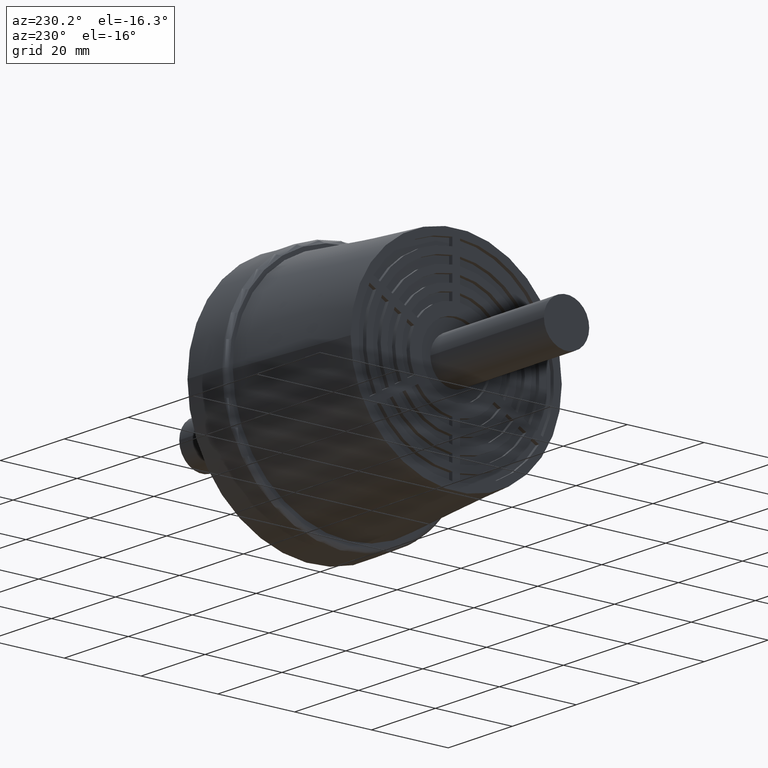
[diagram: clean part render]
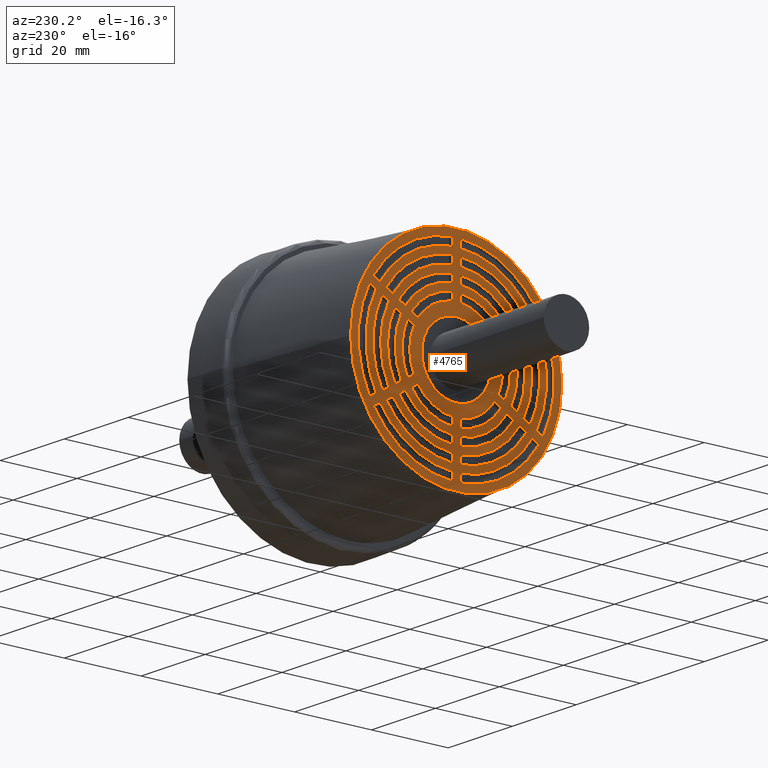
[diagram: same view with one face highlighted and labeled with its STEP entity id]
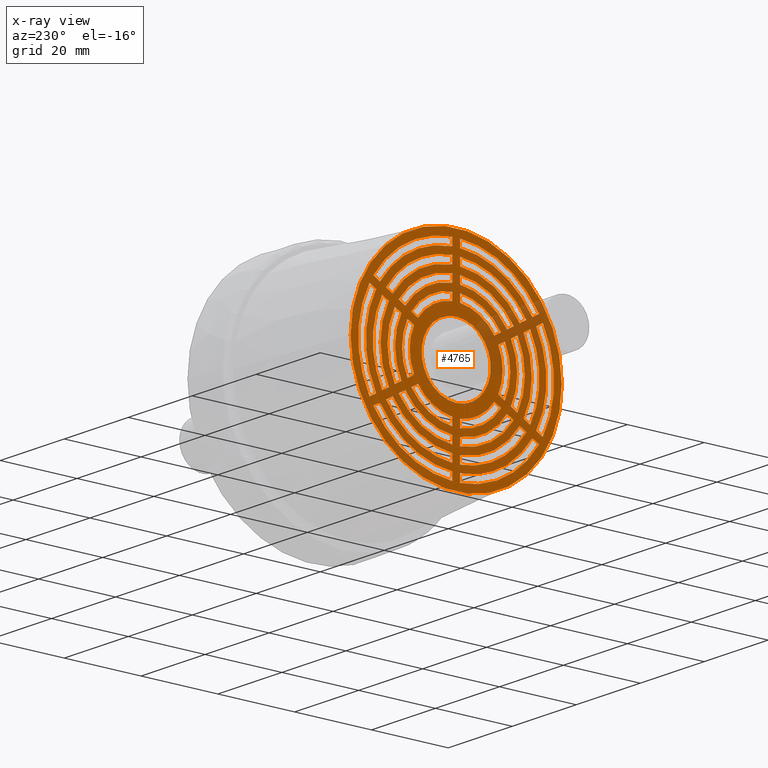
[diagram: x-ray of the same camera — body ghosted, the highlighted face saturated]
A machine part, auxiliary view. The second image highlights one B-rep face of the part: STEP entity #4765.
The next image is the same camera in x-ray: the body ghosted, the highlighted face saturated — about 11% of this face is hidden behind the body in this view.
In plain terms, the highlighted planar face has unit normal (-1, -0, 0).
Its self-contained STEP definition (entity closure, byte-faithful):
#368=LINE('',#7529,#800);
#374=LINE('',#7541,#806);
#378=LINE('',#7550,#810);
#382=LINE('',#7559,#814);
#384=LINE('',#7565,#816);
#390=LINE('',#7577,#822);
#392=LINE('',#7583,#824);
#396=LINE('',#7592,#828);
#400=LINE('',#7601,#832);
#406=LINE('',#7613,#838);
#410=LINE('',#7622,#842);
#414=LINE('',#7631,#846);
#416=LINE('',#7637,#848);
#422=LINE('',#7649,#854);
#424=LINE('',#7655,#856);
#428=LINE('',#7664,#860);
#432=LINE('',#7673,#864);
#438=LINE('',#7685,#870);
#442=LINE('',#7694,#874);
#446=LINE('',#7703,#878);
#448=LINE('',#7709,#880);
#454=LINE('',#7721,#886);
#456=LINE('',#7727,#888);
#460=LINE('',#7736,#892);
#464=LINE('',#7745,#896);
#470=LINE('',#7757,#902);
#474=LINE('',#7766,#906);
#478=LINE('',#7775,#910);
#480=LINE('',#7781,#912);
#486=LINE('',#7793,#918);
#488=LINE('',#7799,#920);
#492=LINE('',#7808,#924);
#496=LINE('',#7817,#928);
#502=LINE('',#7829,#934);
#506=LINE('',#7838,#938);
#510=LINE('',#7847,#942);
#512=LINE('',#7853,#944);
#518=LINE('',#7865,#950);
#520=LINE('',#7871,#952);
#524=LINE('',#7880,#956);
#542=LINE('',#8069,#974);
#543=LINE('',#8070,#975);
#544=LINE('',#8071,#976);
#545=LINE('',#8072,#977);
#546=LINE('',#8076,#978);
#547=LINE('',#8078,#979);
#548=LINE('',#8082,#980);
#549=LINE('',#8087,#981);
#800=VECTOR('',#6082,2.00167084873403);
#806=VECTOR('',#6090,2.00234336091663);
#810=VECTOR('',#6096,2.00352290987396);
#814=VECTOR('',#6102,2.00588741832028);
#816=VECTOR('',#6106,2.00234336091664);
#822=VECTOR('',#6114,2.00167084873402);
#824=VECTOR('',#6118,2.00352290987396);
#828=VECTOR('',#6124,2.00588741832028);
#832=VECTOR('',#6130,2.00167084873402);
#838=VECTOR('',#6138,2.00234336091663);
#842=VECTOR('',#6144,2.00352290987396);
#846=VECTOR('',#6150,2.00588741832028);
#848=VECTOR('',#6154,2.00234336091663);
#854=VECTOR('',#6162,2.00167084873403);
#856=VECTOR('',#6166,2.00352290987396);
#860=VECTOR('',#6172,2.00588741832028);
#864=VECTOR('',#6178,2.00167084873403);
#870=VECTOR('',#6186,2.00234336091663);
#874=VECTOR('',#6192,2.00352290987396);
#878=VECTOR('',#6198,2.00588741832028);
#880=VECTOR('',#6202,2.00234336091663);
#886=VECTOR('',#6210,2.00167084873403);
#888=VECTOR('',#6214,2.00352290987396);
#892=VECTOR('',#6220,2.00588741832028);
#896=VECTOR('',#6226,2.00167084873403);
#902=VECTOR('',#6234,2.00234336091663);
#906=VECTOR('',#6240,2.00352290987396);
#910=VECTOR('',#6246,2.00588741832028);
#912=VECTOR('',#6250,2.00234336091663);
#918=VECTOR('',#6258,2.00167084873402);
#920=VECTOR('',#6262,2.00352290987396);
#924=VECTOR('',#6268,2.00588741832028);
#928=VECTOR('',#6274,2.00167084873403);
#934=VECTOR('',#6282,2.00234336091663);
#938=VECTOR('',#6288,2.00352290987396);
#942=VECTOR('',#6294,2.00588741832028);
#944=VECTOR('',#6298,2.00234336091664);
#950=VECTOR('',#6306,2.00167084873403);
#952=VECTOR('',#6310,2.00352290987396);
#956=VECTOR('',#6316,2.00588741832028);
#974=VECTOR('',#6632,2.00167084873403);
#975=VECTOR('',#6633,2.00588741832028);
#976=VECTOR('',#6634,2.00352290987396);
#977=VECTOR('',#6635,2.00234336091663);
#978=VECTOR('',#6638,2.00588741832028);
#979=VECTOR('',#6641,2.00167084873403);
#980=VECTOR('',#6644,2.00352290987396);
#981=VECTOR('',#6649,2.00234336091663);
#1142=PLANE('',#5252);
#1196=FACE_BOUND('',#1792,.T.);
#1197=FACE_BOUND('',#1793,.T.);
#1198=FACE_BOUND('',#1794,.T.);
#1199=FACE_BOUND('',#1795,.T.);
#1200=FACE_BOUND('',#1796,.T.);
#1201=FACE_BOUND('',#1797,.T.);
#1202=FACE_BOUND('',#1798,.T.);
#1203=FACE_BOUND('',#1799,.T.);
#1204=FACE_BOUND('',#1800,.T.);
#1205=FACE_BOUND('',#1801,.T.);
#1206=FACE_BOUND('',#1802,.T.);
#1207=FACE_BOUND('',#1803,.T.);
#1208=FACE_BOUND('',#1804,.T.);
#1209=FACE_BOUND('',#1805,.T.);
#1210=FACE_BOUND('',#1806,.T.);
#1211=FACE_BOUND('',#1807,.T.);
#1212=FACE_BOUND('',#1808,.T.);
#1213=FACE_BOUND('',#1809,.T.);
#1214=FACE_BOUND('',#1810,.T.);
#1215=FACE_BOUND('',#1811,.T.);
#1216=FACE_BOUND('',#1812,.T.);
#1217=FACE_BOUND('',#1813,.T.);
#1218=FACE_BOUND('',#1814,.T.);
#1219=FACE_BOUND('',#1815,.T.);
#1220=FACE_BOUND('',#1816,.T.);
#1473=FACE_OUTER_BOUND('',#1791,.T.);
#1791=EDGE_LOOP('',(#4289));
#1792=EDGE_LOOP('',(#4290,#4291,#4292,#4293));
#1793=EDGE_LOOP('',(#4294,#4295,#4296,#4297));
#1794=EDGE_LOOP('',(#4298,#4299,#4300,#4301));
#1795=EDGE_LOOP('',(#4302,#4303,#4304,#4305));
#1796=EDGE_LOOP('',(#4306,#4307,#4308,#4309));
#1797=EDGE_LOOP('',(#4310,#4311,#4312,#4313));
#1798=EDGE_LOOP('',(#4314,#4315,#4316,#4317));
#1799=EDGE_LOOP('',(#4318,#4319,#4320,#4321));
#1800=EDGE_LOOP('',(#4322,#4323,#4324,#4325));
#1801=EDGE_LOOP('',(#4326,#4327,#4328,#4329));
#1802=EDGE_LOOP('',(#4330,#4331,#4332,#4333));
#1803=EDGE_LOOP('',(#4334,#4335,#4336,#4337));
#1804=EDGE_LOOP('',(#4338,#4339,#4340,#4341));
#1805=EDGE_LOOP('',(#4342,#4343,#4344,#4345));
#1806=EDGE_LOOP('',(#4346,#4347,#4348,#4349));
#1807=EDGE_LOOP('',(#4350,#4351,#4352,#4353));
#1808=EDGE_LOOP('',(#4354,#4355,#4356,#4357));
#1809=EDGE_LOOP('',(#4358,#4359,#4360,#4361));
#1810=EDGE_LOOP('',(#4362,#4363,#4364,#4365));
#1811=EDGE_LOOP('',(#4366,#4367,#4368,#4369));
#1812=EDGE_LOOP('',(#4370,#4371,#4372,#4373));
#1813=EDGE_LOOP('',(#4374,#4375,#4376,#4377));
#1814=EDGE_LOOP('',(#4378,#4379,#4380,#4381));
#1815=EDGE_LOOP('',(#4382,#4383,#4384,#4385));
#1816=EDGE_LOOP('',(#4386));
#1980=CIRCLE('',#5107,12.1);
#1982=CIRCLE('',#5110,12.1);
#1984=CIRCLE('',#5113,12.1);
#1986=CIRCLE('',#5116,12.1);
#1988=CIRCLE('',#5119,12.1);
#1994=CIRCLE('',#5131,14.1);
#1995=CIRCLE('',#5133,14.1);
#1996=CIRCLE('',#5135,14.1);
#1997=CIRCLE('',#5137,14.1);
#1998=CIRCLE('',#5139,14.1);
#2000=CIRCLE('',#5142,15.9);
#2002=CIRCLE('',#5145,15.9);
#2004=CIRCLE('',#5148,15.9);
#2006=CIRCLE('',#5151,15.9);
#2008=CIRCLE('',#5154,15.9);
#2014=CIRCLE('',#5166,17.9);
#2015=CIRCLE('',#5168,17.9);
#2016=CIRCLE('',#5170,17.9);
#2017=CIRCLE('',#5172,17.9);
#2018=CIRCLE('',#5174,17.9);
#2019=CIRCLE('',#5176,25.5);
#2021=CIRCLE('',#5179,25.5);
#2023=CIRCLE('',#5182,25.5);
#2025=CIRCLE('',#5185,25.5);
#2027=CIRCLE('',#5188,25.5);
#2030=CIRCLE('',#5192,25.5);
#2032=CIRCLE('',#5195,19.7);
#2034=CIRCLE('',#5198,19.7);
#2036=CIRCLE('',#5201,19.7);
#2038=CIRCLE('',#5204,19.7);
#2040=CIRCLE('',#5207,19.7);
#2052=CIRCLE('',#5231,23.5);
#2053=CIRCLE('',#5233,23.5);
#2054=CIRCLE('',#5235,23.5);
#2055=CIRCLE('',#5237,23.5);
#2056=CIRCLE('',#5239,23.5);
#2057=CIRCLE('',#5241,23.5);
#2058=CIRCLE('',#5243,21.7);
#2059=CIRCLE('',#5245,21.7);
#2060=CIRCLE('',#5247,21.7);
#2061=CIRCLE('',#5249,21.7);
#2062=CIRCLE('',#5251,21.7);
#2063=CIRCLE('',#5253,27.5);
#2064=CIRCLE('',#5254,14.1);
#2065=CIRCLE('',#5255,12.1);
#2066=CIRCLE('',#5256,17.9);
#2067=CIRCLE('',#5257,15.9);
#2068=CIRCLE('',#5258,21.7);
#2069=CIRCLE('',#5259,19.7);
#2070=CIRCLE('',#5260,9.);
#2336=VERTEX_POINT('',#7525);
#2338=VERTEX_POINT('',#7528);
#2341=VERTEX_POINT('',#7535);
#2343=VERTEX_POINT('',#7539);
#2345=VERTEX_POINT('',#7544);
#2347=VERTEX_POINT('',#7548);
#2349=VERTEX_POINT('',#7553);
#2351=VERTEX_POINT('',#7557);
#2352=VERTEX_POINT('',#7561);
#2354=VERTEX_POINT('',#7564);
#2357=VERTEX_POINT('',#7571);
#2359=VERTEX_POINT('',#7575);
#2360=VERTEX_POINT('',#7579);
#2362=VERTEX_POINT('',#7582);
#2364=VERTEX_POINT('',#7588);
#2366=VERTEX_POINT('',#7591);
#2368=VERTEX_POINT('',#7597);
#2370=VERTEX_POINT('',#7600);
#2373=VERTEX_POINT('',#7607);
#2375=VERTEX_POINT('',#7611);
#2377=VERTEX_POINT('',#7616);
#2379=VERTEX_POINT('',#7620);
#2381=VERTEX_POINT('',#7625);
#2383=VERTEX_POINT('',#7629);
#2384=VERTEX_POINT('',#7633);
#2386=VERTEX_POINT('',#7636);
#2389=VERTEX_POINT('',#7643);
#2391=VERTEX_POINT('',#7647);
#2392=VERTEX_POINT('',#7651);
#2394=VERTEX_POINT('',#7654);
#2396=VERTEX_POINT('',#7660);
#2398=VERTEX_POINT('',#7663);
#2400=VERTEX_POINT('',#7669);
#2402=VERTEX_POINT('',#7672);
#2405=VERTEX_POINT('',#7679);
#2407=VERTEX_POINT('',#7683);
#2409=VERTEX_POINT('',#7688);
#2411=VERTEX_POINT('',#7692);
#2413=VERTEX_POINT('',#7697);
#2415=VERTEX_POINT('',#7701);
#2416=VERTEX_POINT('',#7705);
#2418=VERTEX_POINT('',#7708);
#2421=VERTEX_POINT('',#7715);
#2423=VERTEX_POINT('',#7719);
#2424=VERTEX_POINT('',#7723);
#2426=VERTEX_POINT('',#7726);
#2428=VERTEX_POINT('',#7732);
#2430=VERTEX_POINT('',#7735);
#2432=VERTEX_POINT('',#7741);
#2434=VERTEX_POINT('',#7744);
#2437=VERTEX_POINT('',#7751);
#2439=VERTEX_POINT('',#7755);
#2441=VERTEX_POINT('',#7760);
#2443=VERTEX_POINT('',#7764);
#2445=VERTEX_POINT('',#7769);
#2447=VERTEX_POINT('',#7773);
#2448=VERTEX_POINT('',#7777);
#2450=VERTEX_POINT('',#7780);
#2453=VERTEX_POINT('',#7787);
#2455=VERTEX_POINT('',#7791);
#2456=VERTEX_POINT('',#7795);
#2458=VERTEX_POINT('',#7798);
#2460=VERTEX_POINT('',#7804);
#2462=VERTEX_POINT('',#7807);
#2464=VERTEX_POINT('',#7813);
#2466=VERTEX_POINT('',#7816);
#2469=VERTEX_POINT('',#7823);
#2471=VERTEX_POINT('',#7827);
#2473=VERTEX_POINT('',#7832);
#2475=VERTEX_POINT('',#7836);
#2477=VERTEX_POINT('',#7841);
#2479=VERTEX_POINT('',#7845);
#2480=VERTEX_POINT('',#7849);
#2482=VERTEX_POINT('',#7852);
#2485=VERTEX_POINT('',#7859);
#2487=VERTEX_POINT('',#7863);
#2488=VERTEX_POINT('',#7867);
#2490=VERTEX_POINT('',#7870);
#2492=VERTEX_POINT('',#7876);
#2494=VERTEX_POINT('',#7879);
#2497=VERTEX_POINT('',#7887);
#2499=VERTEX_POINT('',#7915);
#2501=VERTEX_POINT('',#7929);
#2503=VERTEX_POINT('',#7957);
#2504=VERTEX_POINT('',#7969);
#2507=VERTEX_POINT('',#7989);
#2509=VERTEX_POINT('',#7995);
#2513=VERTEX_POINT('',#8039);
#2514=VERTEX_POINT('',#8051);
#2515=VERTEX_POINT('',#8055);
#2516=VERTEX_POINT('',#8067);
#2517=VERTEX_POINT('',#8073);
#2518=VERTEX_POINT('',#8075);
#2519=VERTEX_POINT('',#8079);
#2520=VERTEX_POINT('',#8081);
#2521=VERTEX_POINT('',#8084);
#2522=VERTEX_POINT('',#8086);
#2523=VERTEX_POINT('',#8089);
#2894=EDGE_CURVE('',#2338,#2336,#368,.T.);
#2900=EDGE_CURVE('',#2341,#2343,#374,.T.);
#2904=EDGE_CURVE('',#2345,#2347,#378,.T.);
#2908=EDGE_CURVE('',#2349,#2351,#382,.T.);
#2910=EDGE_CURVE('',#2354,#2352,#384,.T.);
#2916=EDGE_CURVE('',#2357,#2359,#390,.T.);
#2918=EDGE_CURVE('',#2362,#2360,#392,.T.);
#2922=EDGE_CURVE('',#2366,#2364,#396,.T.);
#2926=EDGE_CURVE('',#2370,#2368,#400,.T.);
#2932=EDGE_CURVE('',#2373,#2375,#406,.T.);
#2936=EDGE_CURVE('',#2377,#2379,#410,.T.);
#2940=EDGE_CURVE('',#2381,#2383,#414,.T.);
#2942=EDGE_CURVE('',#2386,#2384,#416,.T.);
#2948=EDGE_CURVE('',#2389,#2391,#422,.T.);
#2950=EDGE_CURVE('',#2394,#2392,#424,.T.);
#2954=EDGE_CURVE('',#2398,#2396,#428,.T.);
#2958=EDGE_CURVE('',#2402,#2400,#432,.T.);
#2964=EDGE_CURVE('',#2405,#2407,#438,.T.);
#2968=EDGE_CURVE('',#2409,#2411,#442,.T.);
#2972=EDGE_CURVE('',#2413,#2415,#446,.T.);
#2974=EDGE_CURVE('',#2418,#2416,#448,.T.);
#2980=EDGE_CURVE('',#2421,#2423,#454,.T.);
#2982=EDGE_CURVE('',#2426,#2424,#456,.T.);
#2986=EDGE_CURVE('',#2430,#2428,#460,.T.);
#2990=EDGE_CURVE('',#2434,#2432,#464,.T.);
#2996=EDGE_CURVE('',#2437,#2439,#470,.T.);
#3000=EDGE_CURVE('',#2441,#2443,#474,.T.);
#3004=EDGE_CURVE('',#2445,#2447,#478,.T.);
#3006=EDGE_CURVE('',#2450,#2448,#480,.T.);
#3012=EDGE_CURVE('',#2453,#2455,#486,.T.);
#3014=EDGE_CURVE('',#2458,#2456,#488,.T.);
#3018=EDGE_CURVE('',#2462,#2460,#492,.T.);
#3022=EDGE_CURVE('',#2466,#2464,#496,.T.);
#3028=EDGE_CURVE('',#2469,#2471,#502,.T.);
#3032=EDGE_CURVE('',#2473,#2475,#506,.T.);
#3036=EDGE_CURVE('',#2477,#2479,#510,.T.);
#3038=EDGE_CURVE('',#2482,#2480,#512,.T.);
#3044=EDGE_CURVE('',#2485,#2487,#518,.T.);
#3046=EDGE_CURVE('',#2490,#2488,#520,.T.);
#3050=EDGE_CURVE('',#2494,#2492,#524,.T.);
#3055=EDGE_CURVE('',#2492,#2497,#1980,.T.);
#3057=EDGE_CURVE('',#2460,#2477,#1982,.T.);
#3059=EDGE_CURVE('',#2428,#2445,#1984,.T.);
#3061=EDGE_CURVE('',#2396,#2413,#1986,.T.);
#3063=EDGE_CURVE('',#2364,#2381,#1988,.T.);
#3070=EDGE_CURVE('',#2499,#2494,#1994,.T.);
#3072=EDGE_CURVE('',#2479,#2462,#1995,.T.);
#3073=EDGE_CURVE('',#2447,#2430,#1996,.T.);
#3074=EDGE_CURVE('',#2415,#2398,#1997,.T.);
#3075=EDGE_CURVE('',#2383,#2366,#1998,.T.);
#3078=EDGE_CURVE('',#2488,#2501,#2000,.T.);
#3080=EDGE_CURVE('',#2456,#2473,#2002,.T.);
#3082=EDGE_CURVE('',#2424,#2441,#2004,.T.);
#3084=EDGE_CURVE('',#2392,#2409,#2006,.T.);
#3086=EDGE_CURVE('',#2360,#2377,#2008,.T.);
#3093=EDGE_CURVE('',#2503,#2490,#2014,.T.);
#3095=EDGE_CURVE('',#2475,#2458,#2015,.T.);
#3096=EDGE_CURVE('',#2443,#2426,#2016,.T.);
#3097=EDGE_CURVE('',#2411,#2394,#2017,.T.);
#3098=EDGE_CURVE('',#2379,#2362,#2018,.T.);
#3099=EDGE_CURVE('',#2504,#2485,#2019,.T.);
#3102=EDGE_CURVE('',#2464,#2453,#2021,.T.);
#3104=EDGE_CURVE('',#2432,#2421,#2023,.T.);
#3106=EDGE_CURVE('',#2400,#2389,#2025,.T.);
#3108=EDGE_CURVE('',#2368,#2357,#2027,.T.);
#3112=EDGE_CURVE('',#2336,#2507,#2030,.T.);
#3115=EDGE_CURVE('',#2480,#2509,#2032,.T.);
#3117=EDGE_CURVE('',#2448,#2469,#2034,.T.);
#3119=EDGE_CURVE('',#2416,#2437,#2036,.T.);
#3121=EDGE_CURVE('',#2384,#2405,#2038,.T.);
#3123=EDGE_CURVE('',#2352,#2373,#2040,.T.);
#3139=EDGE_CURVE('',#2487,#2513,#2052,.T.);
#3140=EDGE_CURVE('',#2455,#2466,#2053,.T.);
#3141=EDGE_CURVE('',#2423,#2434,#2054,.T.);
#3142=EDGE_CURVE('',#2391,#2402,#2055,.T.);
#3143=EDGE_CURVE('',#2359,#2370,#2056,.T.);
#3144=EDGE_CURVE('',#2514,#2338,#2057,.T.);
#3146=EDGE_CURVE('',#2515,#2482,#2058,.T.);
#3148=EDGE_CURVE('',#2471,#2450,#2059,.T.);
#3149=EDGE_CURVE('',#2439,#2418,#2060,.T.);
#3150=EDGE_CURVE('',#2407,#2386,#2061,.T.);
#3151=EDGE_CURVE('',#2375,#2354,#2062,.T.);
#3152=EDGE_CURVE('',#2516,#2516,#2063,.T.);
#3153=EDGE_CURVE('',#2507,#2514,#542,.T.);
#3154=EDGE_CURVE('',#2497,#2499,#543,.T.);
#3155=EDGE_CURVE('',#2501,#2503,#544,.T.);
#3156=EDGE_CURVE('',#2509,#2515,#545,.T.);
#3157=EDGE_CURVE('',#2351,#2517,#2064,.T.);
#3158=EDGE_CURVE('',#2517,#2518,#546,.T.);
#3159=EDGE_CURVE('',#2518,#2349,#2065,.T.);
#3160=EDGE_CURVE('',#2513,#2504,#547,.T.);
#3161=EDGE_CURVE('',#2347,#2519,#2066,.T.);
#3162=EDGE_CURVE('',#2519,#2520,#548,.T.);
#3163=EDGE_CURVE('',#2520,#2345,#2067,.T.);
#3164=EDGE_CURVE('',#2343,#2521,#2068,.T.);
#3165=EDGE_CURVE('',#2521,#2522,#549,.T.);
#3166=EDGE_CURVE('',#2522,#2341,#2069,.T.);
#3167=EDGE_CURVE('',#2523,#2523,#2070,.T.);
#4289=ORIENTED_EDGE('',*,*,#3152,.F.);
#4290=ORIENTED_EDGE('',*,*,#3063,.T.);
#4291=ORIENTED_EDGE('',*,*,#2940,.T.);
#4292=ORIENTED_EDGE('',*,*,#3075,.T.);
#4293=ORIENTED_EDGE('',*,*,#2922,.T.);
#4294=ORIENTED_EDGE('',*,*,#3086,.T.);
#4295=ORIENTED_EDGE('',*,*,#2936,.T.);
#4296=ORIENTED_EDGE('',*,*,#3098,.T.);
#4297=ORIENTED_EDGE('',*,*,#2918,.T.);
#4298=ORIENTED_EDGE('',*,*,#3112,.T.);
#4299=ORIENTED_EDGE('',*,*,#3153,.T.);
#4300=ORIENTED_EDGE('',*,*,#3144,.T.);
#4301=ORIENTED_EDGE('',*,*,#2894,.T.);
#4302=ORIENTED_EDGE('',*,*,#3123,.T.);
#4303=ORIENTED_EDGE('',*,*,#2932,.T.);
#4304=ORIENTED_EDGE('',*,*,#3151,.T.);
#4305=ORIENTED_EDGE('',*,*,#2910,.T.);
#4306=ORIENTED_EDGE('',*,*,#3061,.T.);
#4307=ORIENTED_EDGE('',*,*,#2972,.T.);
#4308=ORIENTED_EDGE('',*,*,#3074,.T.);
#4309=ORIENTED_EDGE('',*,*,#2954,.T.);
#4310=ORIENTED_EDGE('',*,*,#3084,.T.);
#4311=ORIENTED_EDGE('',*,*,#2968,.T.);
#4312=ORIENTED_EDGE('',*,*,#3097,.T.);
#4313=ORIENTED_EDGE('',*,*,#2950,.T.);
#4314=ORIENTED_EDGE('',*,*,#2916,.T.);
#4315=ORIENTED_EDGE('',*,*,#3143,.T.);
#4316=ORIENTED_EDGE('',*,*,#2926,.T.);
#4317=ORIENTED_EDGE('',*,*,#3108,.T.);
#4318=ORIENTED_EDGE('',*,*,#3121,.T.);
#4319=ORIENTED_EDGE('',*,*,#2964,.T.);
#4320=ORIENTED_EDGE('',*,*,#3150,.T.);
#4321=ORIENTED_EDGE('',*,*,#2942,.T.);
#4322=ORIENTED_EDGE('',*,*,#3059,.T.);
#4323=ORIENTED_EDGE('',*,*,#3004,.T.);
#4324=ORIENTED_EDGE('',*,*,#3073,.T.);
#4325=ORIENTED_EDGE('',*,*,#2986,.T.);
#4326=ORIENTED_EDGE('',*,*,#3082,.T.);
#4327=ORIENTED_EDGE('',*,*,#3000,.T.);
#4328=ORIENTED_EDGE('',*,*,#3096,.T.);
#4329=ORIENTED_EDGE('',*,*,#2982,.T.);
#4330=ORIENTED_EDGE('',*,*,#2948,.T.);
#4331=ORIENTED_EDGE('',*,*,#3142,.T.);
#4332=ORIENTED_EDGE('',*,*,#2958,.T.);
#4333=ORIENTED_EDGE('',*,*,#3106,.T.);
#4334=ORIENTED_EDGE('',*,*,#3119,.T.);
#4335=ORIENTED_EDGE('',*,*,#2996,.T.);
#4336=ORIENTED_EDGE('',*,*,#3149,.T.);
#4337=ORIENTED_EDGE('',*,*,#2974,.T.);
#4338=ORIENTED_EDGE('',*,*,#3057,.T.);
#4339=ORIENTED_EDGE('',*,*,#3036,.T.);
#4340=ORIENTED_EDGE('',*,*,#3072,.T.);
#4341=ORIENTED_EDGE('',*,*,#3018,.T.);
#4342=ORIENTED_EDGE('',*,*,#3080,.T.);
#4343=ORIENTED_EDGE('',*,*,#3032,.T.);
#4344=ORIENTED_EDGE('',*,*,#3095,.T.);
#4345=ORIENTED_EDGE('',*,*,#3014,.T.);
#4346=ORIENTED_EDGE('',*,*,#2980,.T.);
#4347=ORIENTED_EDGE('',*,*,#3141,.T.);
#4348=ORIENTED_EDGE('',*,*,#2990,.T.);
#4349=ORIENTED_EDGE('',*,*,#3104,.T.);
#4350=ORIENTED_EDGE('',*,*,#3117,.T.);
#4351=ORIENTED_EDGE('',*,*,#3028,.T.);
#4352=ORIENTED_EDGE('',*,*,#3148,.T.);
#4353=ORIENTED_EDGE('',*,*,#3006,.T.);
#4354=ORIENTED_EDGE('',*,*,#3055,.T.);
#4355=ORIENTED_EDGE('',*,*,#3154,.T.);
#4356=ORIENTED_EDGE('',*,*,#3070,.T.);
#4357=ORIENTED_EDGE('',*,*,#3050,.T.);
#4358=ORIENTED_EDGE('',*,*,#3078,.T.);
#4359=ORIENTED_EDGE('',*,*,#3155,.T.);
#4360=ORIENTED_EDGE('',*,*,#3093,.T.);
#4361=ORIENTED_EDGE('',*,*,#3046,.T.);
#4362=ORIENTED_EDGE('',*,*,#3012,.T.);
#4363=ORIENTED_EDGE('',*,*,#3140,.T.);
#4364=ORIENTED_EDGE('',*,*,#3022,.T.);
#4365=ORIENTED_EDGE('',*,*,#3102,.T.);
#4366=ORIENTED_EDGE('',*,*,#3115,.T.);
#4367=ORIENTED_EDGE('',*,*,#3156,.T.);
#4368=ORIENTED_EDGE('',*,*,#3146,.T.);
#4369=ORIENTED_EDGE('',*,*,#3038,.T.);
#4370=ORIENTED_EDGE('',*,*,#2908,.T.);
#4371=ORIENTED_EDGE('',*,*,#3157,.T.);
#4372=ORIENTED_EDGE('',*,*,#3158,.T.);
#4373=ORIENTED_EDGE('',*,*,#3159,.T.);
#4374=ORIENTED_EDGE('',*,*,#3044,.T.);
#4375=ORIENTED_EDGE('',*,*,#3139,.T.);
#4376=ORIENTED_EDGE('',*,*,#3160,.T.);
#4377=ORIENTED_EDGE('',*,*,#3099,.T.);
#4378=ORIENTED_EDGE('',*,*,#2904,.T.);
#4379=ORIENTED_EDGE('',*,*,#3161,.T.);
#4380=ORIENTED_EDGE('',*,*,#3162,.T.);
#4381=ORIENTED_EDGE('',*,*,#3163,.T.);
#4382=ORIENTED_EDGE('',*,*,#2900,.T.);
#4383=ORIENTED_EDGE('',*,*,#3164,.T.);
#4384=ORIENTED_EDGE('',*,*,#3165,.T.);
#4385=ORIENTED_EDGE('',*,*,#3166,.T.);
#4386=ORIENTED_EDGE('',*,*,#3167,.T.);
#4765=ADVANCED_FACE('',(#1473,#1196,#1197,#1198,#1199,#1200,#1201,#1202,
#1203,#1204,#1205,#1206,#1207,#1208,#1209,#1210,#1211,#1212,#1213,#1214,
#1215,#1216,#1217,#1218,#1219,#1220),#1142,.T.);
#5107=AXIS2_PLACEMENT_3D('',#7889,#6324,#6325);
#5110=AXIS2_PLACEMENT_3D('',#7892,#6330,#6331);
#5113=AXIS2_PLACEMENT_3D('',#7895,#6336,#6337);
#5116=AXIS2_PLACEMENT_3D('',#7898,#6342,#6343);
#5119=AXIS2_PLACEMENT_3D('',#7901,#6348,#6349);
#5131=AXIS2_PLACEMENT_3D('',#7916,#6373,#6374);
#5133=AXIS2_PLACEMENT_3D('',#7919,#6378,#6379);
#5135=AXIS2_PLACEMENT_3D('',#7921,#6382,#6383);
#5137=AXIS2_PLACEMENT_3D('',#7923,#6386,#6387);
#5139=AXIS2_PLACEMENT_3D('',#7925,#6390,#6391);
#5142=AXIS2_PLACEMENT_3D('',#7931,#6397,#6398);
#5145=AXIS2_PLACEMENT_3D('',#7934,#6403,#6404);
#5148=AXIS2_PLACEMENT_3D('',#7937,#6409,#6410);
#5151=AXIS2_PLACEMENT_3D('',#7940,#6415,#6416);
#5154=AXIS2_PLACEMENT_3D('',#7943,#6421,#6422);
#5166=AXIS2_PLACEMENT_3D('',#7958,#6446,#6447);
#5168=AXIS2_PLACEMENT_3D('',#7961,#6451,#6452);
#5170=AXIS2_PLACEMENT_3D('',#7963,#6455,#6456);
#5172=AXIS2_PLACEMENT_3D('',#7965,#6459,#6460);
#5174=AXIS2_PLACEMENT_3D('',#7967,#6463,#6464);
#5176=AXIS2_PLACEMENT_3D('',#7970,#6467,#6468);
#5179=AXIS2_PLACEMENT_3D('',#7975,#6474,#6475);
#5182=AXIS2_PLACEMENT_3D('',#7978,#6480,#6481);
#5185=AXIS2_PLACEMENT_3D('',#7981,#6486,#6487);
#5188=AXIS2_PLACEMENT_3D('',#7984,#6492,#6493);
#5192=AXIS2_PLACEMENT_3D('',#7991,#6501,#6502);
#5195=AXIS2_PLACEMENT_3D('',#7997,#6508,#6509);
#5198=AXIS2_PLACEMENT_3D('',#8000,#6514,#6515);
#5201=AXIS2_PLACEMENT_3D('',#8003,#6520,#6521);
#5204=AXIS2_PLACEMENT_3D('',#8006,#6526,#6527);
#5207=AXIS2_PLACEMENT_3D('',#8009,#6532,#6533);
#5231=AXIS2_PLACEMENT_3D('',#8041,#6584,#6585);
#5233=AXIS2_PLACEMENT_3D('',#8043,#6588,#6589);
#5235=AXIS2_PLACEMENT_3D('',#8045,#6592,#6593);
#5237=AXIS2_PLACEMENT_3D('',#8047,#6596,#6597);
#5239=AXIS2_PLACEMENT_3D('',#8049,#6600,#6601);
#5241=AXIS2_PLACEMENT_3D('',#8052,#6604,#6605);
#5243=AXIS2_PLACEMENT_3D('',#8056,#6609,#6610);
#5245=AXIS2_PLACEMENT_3D('',#8059,#6614,#6615);
#5247=AXIS2_PLACEMENT_3D('',#8061,#6618,#6619);
#5249=AXIS2_PLACEMENT_3D('',#8063,#6622,#6623);
#5251=AXIS2_PLACEMENT_3D('',#8065,#6626,#6627);
#5252=AXIS2_PLACEMENT_3D('',#8066,#6628,#6629);
#5253=AXIS2_PLACEMENT_3D('',#8068,#6630,#6631);
#5254=AXIS2_PLACEMENT_3D('',#8074,#6636,#6637);
#5255=AXIS2_PLACEMENT_3D('',#8077,#6639,#6640);
#5256=AXIS2_PLACEMENT_3D('',#8080,#6642,#6643);
#5257=AXIS2_PLACEMENT_3D('',#8083,#6645,#6646);
#5258=AXIS2_PLACEMENT_3D('',#8085,#6647,#6648);
#5259=AXIS2_PLACEMENT_3D('',#8088,#6650,#6651);
#5260=AXIS2_PLACEMENT_3D('',#8090,#6652,#6653);
#6082=DIRECTION('',(-4.46128945974761E-32,0.866025403784439,0.499999999999999));
#6090=DIRECTION('',(-4.46128945974761E-32,0.866025403784439,0.499999999999999));
#6096=DIRECTION('',(-4.46128945974761E-32,0.866025403784439,0.499999999999999));
#6102=DIRECTION('',(-4.46128945974761E-32,0.866025403784439,0.499999999999999));
#6106=DIRECTION('',(2.23064472987381E-32,-0.866025403784439,-0.499999999999999));
#6114=DIRECTION('',(2.23064472987381E-32,-0.866025403784439,-0.499999999999999));
#6118=DIRECTION('',(2.23064472987381E-32,-0.866025403784439,-0.499999999999999));
#6124=DIRECTION('',(2.23064472987381E-32,-0.866025403784439,-0.499999999999999));
#6130=DIRECTION('',(-4.46128945974761E-32,0.866025403784438,-0.500000000000001));
#6138=DIRECTION('',(-4.46128945974761E-32,0.866025403784438,-0.500000000000001));
#6144=DIRECTION('',(-4.46128945974761E-32,0.866025403784438,-0.500000000000001));
#6150=DIRECTION('',(-4.46128945974761E-32,0.866025403784438,-0.500000000000001));
#6154=DIRECTION('',(2.23064472987381E-32,-0.866025403784438,0.500000000000001));
#6162=DIRECTION('',(2.23064472987381E-32,-0.866025403784438,0.500000000000001));
#6166=DIRECTION('',(2.23064472987381E-32,-0.866025403784438,0.500000000000001));
#6172=DIRECTION('',(2.23064472987381E-32,-0.866025403784438,0.500000000000001));
#6178=DIRECTION('',(-4.46128945974761E-32,-3.88578058618805E-16,-1.));
#6186=DIRECTION('',(-4.46128945974761E-32,-3.88578058618805E-16,-1.));
#6192=DIRECTION('',(-4.46128945974761E-32,-3.88578058618805E-16,-1.));
#6198=DIRECTION('',(-4.46128945974761E-32,-3.88578058618805E-16,-1.));
#6202=DIRECTION('',(2.23064472987381E-32,3.33066907387547E-16,1.));
#6210=DIRECTION('',(2.23064472987381E-32,3.33066907387547E-16,1.));
#6214=DIRECTION('',(2.23064472987381E-32,3.33066907387547E-16,1.));
#6220=DIRECTION('',(2.23064472987381E-32,3.33066907387547E-16,1.));
#6226=DIRECTION('',(-4.46128945974761E-32,-0.866025403784439,-0.5));
#6234=DIRECTION('',(-4.46128945974761E-32,-0.866025403784439,-0.5));
#6240=DIRECTION('',(-4.46128945974761E-32,-0.866025403784439,-0.5));
#6246=DIRECTION('',(-4.46128945974761E-32,-0.866025403784439,-0.5));
#6250=DIRECTION('',(2.23064472987381E-32,0.866025403784439,0.5));
#6258=DIRECTION('',(2.23064472987381E-32,0.866025403784439,0.5));
#6262=DIRECTION('',(2.23064472987381E-32,0.866025403784439,0.5));
#6268=DIRECTION('',(2.23064472987381E-32,0.866025403784439,0.5));
#6274=DIRECTION('',(-4.46128945974761E-32,-0.866025403784438,0.5));
#6282=DIRECTION('',(-4.46128945974761E-32,-0.866025403784438,0.5));
#6288=DIRECTION('',(-4.46128945974761E-32,-0.866025403784438,0.5));
#6294=DIRECTION('',(-4.46128945974761E-32,-0.866025403784439,0.5));
#6298=DIRECTION('',(2.23064472987381E-32,0.866025403784439,-0.5));
#6306=DIRECTION('',(2.23064472987381E-32,0.866025403784439,-0.5));
#6310=DIRECTION('',(2.23064472987381E-32,0.866025403784439,-0.5));
#6316=DIRECTION('',(2.23064472987381E-32,0.866025403784439,-0.5));
#6324=DIRECTION('center_axis',(-1.,-1.83697019872103E-16,0.));
#6325=DIRECTION('ref_axis',(0.,0.,-1.));
#6330=DIRECTION('center_axis',(-1.,-1.83697019872103E-16,0.));
#6331=DIRECTION('ref_axis',(0.,0.,-1.));
#6336=DIRECTION('center_axis',(-1.,-1.83697019872103E-16,0.));
#6337=DIRECTION('ref_axis',(0.,0.,-1.));
#6342=DIRECTION('center_axis',(-1.,-1.83697019872103E-16,0.));
#6343=DIRECTION('ref_axis',(0.,0.,-1.));
#6348=DIRECTION('center_axis',(-1.,-1.83697019872103E-16,0.));
#6349=DIRECTION('ref_axis',(0.,0.,-1.));
#6373=DIRECTION('center_axis',(1.,1.83697019872103E-16,0.));
#6374=DIRECTION('ref_axis',(0.,0.,-1.));
#6378=DIRECTION('center_axis',(1.,1.83697019872103E-16,0.));
#6379=DIRECTION('ref_axis',(0.,0.,-1.));
#6382=DIRECTION('center_axis',(1.,1.83697019872103E-16,0.));
#6383=DIRECTION('ref_axis',(0.,0.,-1.));
#6386=DIRECTION('center_axis',(1.,1.83697019872103E-16,0.));
#6387=DIRECTION('ref_axis',(0.,0.,-1.));
#6390=DIRECTION('center_axis',(1.,1.83697019872103E-16,0.));
#6391=DIRECTION('ref_axis',(0.,0.,-1.));
#6397=DIRECTION('center_axis',(-1.,-1.83697019872103E-16,0.));
#6398=DIRECTION('ref_axis',(0.,0.,-1.));
#6403=DIRECTION('center_axis',(-1.,-1.83697019872103E-16,0.));
#6404=DIRECTION('ref_axis',(0.,0.,-1.));
#6409=DIRECTION('center_axis',(-1.,-1.83697019872103E-16,0.));
#6410=DIRECTION('ref_axis',(0.,0.,-1.));
#6415=DIRECTION('center_axis',(-1.,-1.83697019872103E-16,0.));
#6416=DIRECTION('ref_axis',(0.,0.,-1.));
#6421=DIRECTION('center_axis',(-1.,-1.83697019872103E-16,0.));
#6422=DIRECTION('ref_axis',(0.,0.,-1.));
#6446=DIRECTION('center_axis',(1.,1.83697019872103E-16,0.));
#6447=DIRECTION('ref_axis',(0.,0.,-1.));
#6451=DIRECTION('center_axis',(1.,1.83697019872103E-16,0.));
#6452=DIRECTION('ref_axis',(0.,0.,-1.));
#6455=DIRECTION('center_axis',(1.,1.83697019872103E-16,0.));
#6456=DIRECTION('ref_axis',(0.,0.,-1.));
#6459=DIRECTION('center_axis',(1.,1.83697019872103E-16,0.));
#6460=DIRECTION('ref_axis',(0.,0.,-1.));
#6463=DIRECTION('center_axis',(1.,1.83697019872103E-16,0.));
#6464=DIRECTION('ref_axis',(0.,0.,-1.));
#6467=DIRECTION('center_axis',(1.,1.83697019872103E-16,0.));
#6468=DIRECTION('ref_axis',(0.,0.,-1.));
#6474=DIRECTION('center_axis',(1.,1.83697019872103E-16,0.));
#6475=DIRECTION('ref_axis',(0.,0.,-1.));
#6480=DIRECTION('center_axis',(1.,1.83697019872103E-16,0.));
#6481=DIRECTION('ref_axis',(0.,0.,-1.));
#6486=DIRECTION('center_axis',(1.,1.83697019872103E-16,0.));
#6487=DIRECTION('ref_axis',(0.,0.,-1.));
#6492=DIRECTION('center_axis',(1.,1.83697019872103E-16,0.));
#6493=DIRECTION('ref_axis',(0.,0.,-1.));
#6501=DIRECTION('center_axis',(1.,1.83697019872103E-16,0.));
#6502=DIRECTION('ref_axis',(0.,0.,-1.));
#6508=DIRECTION('center_axis',(-1.,-1.83697019872103E-16,0.));
#6509=DIRECTION('ref_axis',(0.,0.,-1.));
#6514=DIRECTION('center_axis',(-1.,-1.83697019872103E-16,0.));
#6515=DIRECTION('ref_axis',(0.,0.,-1.));
#6520=DIRECTION('center_axis',(-1.,-1.83697019872103E-16,0.));
#6521=DIRECTION('ref_axis',(0.,0.,-1.));
#6526=DIRECTION('center_axis',(-1.,-1.83697019872103E-16,0.));
#6527=DIRECTION('ref_axis',(0.,0.,-1.));
#6532=DIRECTION('center_axis',(-1.,-1.83697019872103E-16,0.));
#6533=DIRECTION('ref_axis',(0.,0.,-1.));
#6584=DIRECTION('center_axis',(-1.,-1.83697019872103E-16,0.));
#6585=DIRECTION('ref_axis',(0.,0.,-1.));
#6588=DIRECTION('center_axis',(-1.,-1.83697019872103E-16,0.));
#6589=DIRECTION('ref_axis',(0.,0.,-1.));
#6592=DIRECTION('center_axis',(-1.,-1.83697019872103E-16,0.));
#6593=DIRECTION('ref_axis',(0.,0.,-1.));
#6596=DIRECTION('center_axis',(-1.,-1.83697019872103E-16,0.));
#6597=DIRECTION('ref_axis',(0.,0.,-1.));
#6600=DIRECTION('center_axis',(-1.,-1.83697019872103E-16,0.));
#6601=DIRECTION('ref_axis',(0.,0.,-1.));
#6604=DIRECTION('center_axis',(-1.,-1.83697019872103E-16,0.));
#6605=DIRECTION('ref_axis',(0.,0.,-1.));
#6609=DIRECTION('center_axis',(1.,1.83697019872103E-16,0.));
#6610=DIRECTION('ref_axis',(0.,0.,-1.));
#6614=DIRECTION('center_axis',(1.,1.83697019872103E-16,0.));
#6615=DIRECTION('ref_axis',(0.,0.,-1.));
#6618=DIRECTION('center_axis',(1.,1.83697019872103E-16,0.));
#6619=DIRECTION('ref_axis',(0.,0.,-1.));
#6622=DIRECTION('center_axis',(1.,1.83697019872103E-16,0.));
#6623=DIRECTION('ref_axis',(0.,0.,-1.));
#6626=DIRECTION('center_axis',(1.,1.83697019872103E-16,0.));
#6627=DIRECTION('ref_axis',(0.,0.,-1.));
#6628=DIRECTION('center_axis',(-1.,-1.83697019872103E-16,0.));
#6629=DIRECTION('ref_axis',(0.,0.,1.));
#6630=DIRECTION('center_axis',(1.,1.83697019872103E-16,0.));
#6631=DIRECTION('ref_axis',(0.,0.,-1.));
#6632=DIRECTION('',(2.23064472987381E-32,-1.21430643318377E-16,-1.));
#6633=DIRECTION('',(-4.46128945974761E-32,2.42861286636753E-16,1.));
#6634=DIRECTION('',(-4.46128945974761E-32,2.42861286636753E-16,1.));
#6635=DIRECTION('',(-4.46128945974761E-32,2.42861286636753E-16,1.));
#6636=DIRECTION('center_axis',(1.,1.83697019872103E-16,0.));
#6637=DIRECTION('ref_axis',(0.,0.,-1.));
#6638=DIRECTION('',(2.23064472987381E-32,-1.21430643318377E-16,-1.));
#6639=DIRECTION('center_axis',(-1.,-1.83697019872103E-16,0.));
#6640=DIRECTION('ref_axis',(0.,0.,-1.));
#6641=DIRECTION('',(-4.46128945974761E-32,2.42861286636753E-16,1.));
#6642=DIRECTION('center_axis',(1.,1.83697019872103E-16,0.));
#6643=DIRECTION('ref_axis',(0.,0.,-1.));
#6644=DIRECTION('',(2.23064472987381E-32,-1.21430643318377E-16,-1.));
#6645=DIRECTION('center_axis',(-1.,-1.83697019872103E-16,0.));
#6646=DIRECTION('ref_axis',(0.,0.,-1.));
#6647=DIRECTION('center_axis',(1.,1.83697019872103E-16,0.));
#6648=DIRECTION('ref_axis',(0.,0.,-1.));
#6649=DIRECTION('',(2.23064472987381E-32,-1.21430643318377E-16,-1.));
#6650=DIRECTION('center_axis',(-1.,-1.83697019872103E-16,0.));
#6651=DIRECTION('ref_axis',(0.,0.,-1.));
#6652=DIRECTION('center_axis',(1.,1.83697019872103E-16,0.));
#6653=DIRECTION('ref_axis',(0.,0.,-1.));
#7525=CARTESIAN_POINT('',(-22.5,21.5666603726074,13.6062177100253));
#7528=CARTESIAN_POINT('',(-22.5,19.833162567589,12.6053822856583));
#7529=CARTESIAN_POINT('',(-22.5,8.1602540378444,5.86602540378443));
#7535=CARTESIAN_POINT('',(-22.5,16.5387059367782,10.7033268630262));
#7539=CARTESIAN_POINT('',(-22.5,18.2727861544311,11.7044985434845));
#7541=CARTESIAN_POINT('',(-22.5,8.1602540378444,5.86602540378443));
#7544=CARTESIAN_POINT('',(-22.5,13.2425434327129,8.80028655401133));
#7548=CARTESIAN_POINT('',(-22.5,14.9776451697279,9.80204800894831));
#7550=CARTESIAN_POINT('',(-22.5,8.1602540378444,5.86602540378443));
#7553=CARTESIAN_POINT('',(-22.5,9.94305989640968,6.89532884613994));
#7557=CARTESIAN_POINT('',(-22.5,11.6802093578066,7.89827255530007));
#7559=CARTESIAN_POINT('',(-22.5,8.1602540378444,5.86602540378443));
#7561=CARTESIAN_POINT('',(-22.5,17.5387059367782,8.9712760554573));
#7564=CARTESIAN_POINT('',(-22.5,19.2727861544311,9.97244773591561));
#7565=CARTESIAN_POINT('',(-22.5,23.0166604983954,12.1339745962155));
#7571=CARTESIAN_POINT('',(-22.5,22.5666603726074,11.8741669024564));
#7575=CARTESIAN_POINT('',(-22.5,20.833162567589,10.8733314780894));
#7577=CARTESIAN_POINT('',(-22.5,23.0166604983954,12.1339745962155));
#7579=CARTESIAN_POINT('',(-22.5,14.2425434327129,7.06823574644245));
#7582=CARTESIAN_POINT('',(-22.5,15.9776451697279,8.06999720137943));
#7583=CARTESIAN_POINT('',(-22.5,23.0166604983954,12.1339745962155));
#7588=CARTESIAN_POINT('',(-22.5,10.9430598964097,5.16327803857106));
#7591=CARTESIAN_POINT('',(-22.5,12.6802093578066,6.1662217477312));
#7592=CARTESIAN_POINT('',(-22.5,23.0166604983954,12.1339745962155));
#7597=CARTESIAN_POINT('',(-22.5,22.5666603726074,-11.8741669024565));
#7600=CARTESIAN_POINT('',(-22.5,20.8331625675889,-10.8733314780895));
#7601=CARTESIAN_POINT('',(-22.5,9.16025403784439,-4.13397459621557));
#7607=CARTESIAN_POINT('',(-22.5,17.5387059367782,-8.97127605545733));
#7611=CARTESIAN_POINT('',(-22.5,19.2727861544311,-9.97244773591565));
#7613=CARTESIAN_POINT('',(-22.5,9.16025403784439,-4.13397459621557));
#7616=CARTESIAN_POINT('',(-22.5,14.2425434327129,-7.06823574644247));
#7620=CARTESIAN_POINT('',(-22.5,15.9776451697279,-8.06999720137946));
#7622=CARTESIAN_POINT('',(-22.5,9.16025403784439,-4.13397459621557));
#7625=CARTESIAN_POINT('',(-22.5,10.9430598964097,-5.16327803857108));
#7629=CARTESIAN_POINT('',(-22.5,12.6802093578066,-6.16622174773122));
#7631=CARTESIAN_POINT('',(-22.5,9.16025403784439,-4.13397459621557));
#7633=CARTESIAN_POINT('',(-22.5,16.5387059367782,-10.7033268630262));
#7636=CARTESIAN_POINT('',(-22.5,18.2727861544311,-11.7044985434845));
#7637=CARTESIAN_POINT('',(-22.5,22.0166604983954,-13.8660254037845));
#7643=CARTESIAN_POINT('',(-22.5,21.5666603726074,-13.6062177100254));
#7647=CARTESIAN_POINT('',(-22.5,19.8331625675889,-12.6053822856583));
#7649=CARTESIAN_POINT('',(-22.5,22.0166604983954,-13.8660254037845));
#7651=CARTESIAN_POINT('',(-22.5,13.2425434327129,-8.80028655401135));
#7654=CARTESIAN_POINT('',(-22.5,14.9776451697278,-9.80204800894833));
#7655=CARTESIAN_POINT('',(-22.5,22.0166604983954,-13.8660254037845));
#7660=CARTESIAN_POINT('',(-22.5,9.94305989640967,-6.89532884613995));
#7663=CARTESIAN_POINT('',(-22.5,11.6802093578066,-7.89827255530009));
#7664=CARTESIAN_POINT('',(-22.5,22.0166604983954,-13.8660254037845));
#7669=CARTESIAN_POINT('',(-22.5,1.,-25.4803846124818));
#7672=CARTESIAN_POINT('',(-22.5,1.,-23.4787137637478));
#7673=CARTESIAN_POINT('',(-22.5,1.00000000000001,-10.));
#7679=CARTESIAN_POINT('',(-22.5,1.00000000000001,-19.6746029184835));
#7683=CARTESIAN_POINT('',(-22.5,1.,-21.6769462794001));
#7685=CARTESIAN_POINT('',(-22.5,1.00000000000001,-10.));
#7688=CARTESIAN_POINT('',(-22.5,1.00000000000001,-15.8685223004538));
#7692=CARTESIAN_POINT('',(-22.5,1.00000000000001,-17.8720452103278));
#7694=CARTESIAN_POINT('',(-22.5,1.00000000000001,-10.));
#7697=CARTESIAN_POINT('',(-22.5,1.00000000000001,-12.058606884711));
#7701=CARTESIAN_POINT('',(-22.5,1.00000000000001,-14.0644943030313));
#7703=CARTESIAN_POINT('',(-22.5,1.00000000000001,-10.));
#7705=CARTESIAN_POINT('',(-22.5,-0.999999999999995,-19.6746029184835));
#7708=CARTESIAN_POINT('',(-22.5,-0.999999999999996,-21.6769462794001));
#7709=CARTESIAN_POINT('',(-22.5,-0.999999999999996,-26.));
#7715=CARTESIAN_POINT('',(-22.5,-0.999999999999997,-25.4803846124818));
#7719=CARTESIAN_POINT('',(-22.5,-0.999999999999997,-23.4787137637478));
#7721=CARTESIAN_POINT('',(-22.5,-0.999999999999996,-26.));
#7723=CARTESIAN_POINT('',(-22.5,-0.999999999999994,-15.8685223004538));
#7726=CARTESIAN_POINT('',(-22.5,-0.999999999999995,-17.8720452103278));
#7727=CARTESIAN_POINT('',(-22.5,-0.999999999999996,-26.));
#7732=CARTESIAN_POINT('',(-22.5,-0.999999999999993,-12.058606884711));
#7735=CARTESIAN_POINT('',(-22.5,-0.999999999999994,-14.0644943030313));
#7736=CARTESIAN_POINT('',(-22.5,-0.999999999999996,-26.));
#7741=CARTESIAN_POINT('',(-22.5,-21.5666603726074,-13.6062177100253));
#7744=CARTESIAN_POINT('',(-22.5,-19.8331625675889,-12.6053822856583));
#7745=CARTESIAN_POINT('',(-22.5,-8.16025403784438,-5.86602540378444));
#7751=CARTESIAN_POINT('',(-22.5,-16.5387059367782,-10.7033268630262));
#7755=CARTESIAN_POINT('',(-22.5,-18.2727861544311,-11.7044985434845));
#7757=CARTESIAN_POINT('',(-22.5,-8.16025403784438,-5.86602540378444));
#7760=CARTESIAN_POINT('',(-22.5,-13.2425434327129,-8.80028655401134));
#7764=CARTESIAN_POINT('',(-22.5,-14.9776451697278,-9.80204800894832));
#7766=CARTESIAN_POINT('',(-22.5,-8.16025403784438,-5.86602540378444));
#7769=CARTESIAN_POINT('',(-22.5,-9.94305989640966,-6.89532884613994));
#7773=CARTESIAN_POINT('',(-22.5,-11.6802093578066,-7.89827255530009));
#7775=CARTESIAN_POINT('',(-22.5,-8.16025403784438,-5.86602540378444));
#7777=CARTESIAN_POINT('',(-22.5,-17.5387059367782,-8.97127605545731));
#7780=CARTESIAN_POINT('',(-22.5,-19.2727861544311,-9.97244773591562));
#7781=CARTESIAN_POINT('',(-22.5,-23.0166604983954,-12.1339745962156));
#7787=CARTESIAN_POINT('',(-22.5,-22.5666603726074,-11.8741669024565));
#7791=CARTESIAN_POINT('',(-22.5,-20.8331625675889,-10.8733314780894));
#7793=CARTESIAN_POINT('',(-22.5,-23.0166604983954,-12.1339745962156));
#7795=CARTESIAN_POINT('',(-22.5,-14.2425434327129,-7.06823574644246));
#7798=CARTESIAN_POINT('',(-22.5,-15.9776451697278,-8.06999720137944));
#7799=CARTESIAN_POINT('',(-22.5,-23.0166604983954,-12.1339745962156));
#7804=CARTESIAN_POINT('',(-22.5,-10.9430598964097,-5.16327803857107));
#7807=CARTESIAN_POINT('',(-22.5,-12.6802093578066,-6.16622174773121));
#7808=CARTESIAN_POINT('',(-22.5,-23.0166604983954,-12.1339745962156));
#7813=CARTESIAN_POINT('',(-22.5,-22.5666603726073,11.8741669024565));
#7816=CARTESIAN_POINT('',(-22.5,-20.8331625675889,10.8733314780895));
#7817=CARTESIAN_POINT('',(-22.5,-9.16025403784438,4.13397459621556));
#7823=CARTESIAN_POINT('',(-22.5,-17.5387059367782,8.97127605545732));
#7827=CARTESIAN_POINT('',(-22.5,-19.2727861544311,9.97244773591564));
#7829=CARTESIAN_POINT('',(-22.5,-9.16025403784438,4.13397459621556));
#7832=CARTESIAN_POINT('',(-22.5,-14.2425434327129,7.06823574644247));
#7836=CARTESIAN_POINT('',(-22.5,-15.9776451697278,8.06999720137945));
#7838=CARTESIAN_POINT('',(-22.5,-9.16025403784438,4.13397459621556));
#7841=CARTESIAN_POINT('',(-22.5,-10.9430598964097,5.16327803857107));
#7845=CARTESIAN_POINT('',(-22.5,-12.6802093578066,6.16622174773121));
#7847=CARTESIAN_POINT('',(-22.5,-9.16025403784438,4.13397459621556));
#7849=CARTESIAN_POINT('',(-22.5,-16.5387059367782,10.7033268630262));
#7852=CARTESIAN_POINT('',(-22.5,-18.2727861544311,11.7044985434845));
#7853=CARTESIAN_POINT('',(-22.5,-22.0166604983954,13.8660254037844));
#7859=CARTESIAN_POINT('',(-22.5,-21.5666603726073,13.6062177100254));
#7863=CARTESIAN_POINT('',(-22.5,-19.8331625675889,12.6053822856583));
#7865=CARTESIAN_POINT('',(-22.5,-22.0166604983954,13.8660254037844));
#7867=CARTESIAN_POINT('',(-22.5,-13.2425434327129,8.80028655401135));
#7870=CARTESIAN_POINT('',(-22.5,-14.9776451697278,9.80204800894833));
#7871=CARTESIAN_POINT('',(-22.5,-22.0166604983954,13.8660254037844));
#7876=CARTESIAN_POINT('',(-22.5,-9.94305989640966,6.89532884613995));
#7879=CARTESIAN_POINT('',(-22.5,-11.6802093578066,7.89827255530009));
#7880=CARTESIAN_POINT('',(-22.5,-22.0166604983954,13.8660254037844));
#7887=CARTESIAN_POINT('',(-22.5,-0.99999999999999,12.058606884711));
#7889=CARTESIAN_POINT('Origin',(-22.5,6.33754718558755E-15,0.));
#7892=CARTESIAN_POINT('Origin',(-22.5,6.33754718558755E-15,0.));
#7895=CARTESIAN_POINT('Origin',(-22.5,6.33754718558755E-15,0.));
#7898=CARTESIAN_POINT('Origin',(-22.5,6.33754718558755E-15,0.));
#7901=CARTESIAN_POINT('Origin',(-22.5,6.33754718558755E-15,0.));
#7915=CARTESIAN_POINT('',(-22.5,-0.999999999999989,14.0644943030313));
#7916=CARTESIAN_POINT('Origin',(-22.5,6.33754718558755E-15,0.));
#7919=CARTESIAN_POINT('Origin',(-22.5,6.33754718558755E-15,0.));
#7921=CARTESIAN_POINT('Origin',(-22.5,6.33754718558755E-15,0.));
#7923=CARTESIAN_POINT('Origin',(-22.5,6.33754718558755E-15,0.));
#7925=CARTESIAN_POINT('Origin',(-22.5,6.33754718558755E-15,0.));
#7929=CARTESIAN_POINT('',(-22.5,-0.999999999999989,15.8685223004538));
#7931=CARTESIAN_POINT('Origin',(-22.5,6.33754718558755E-15,0.));
#7934=CARTESIAN_POINT('Origin',(-22.5,6.33754718558755E-15,0.));
#7937=CARTESIAN_POINT('Origin',(-22.5,6.33754718558755E-15,0.));
#7940=CARTESIAN_POINT('Origin',(-22.5,6.33754718558755E-15,0.));
#7943=CARTESIAN_POINT('Origin',(-22.5,6.33754718558755E-15,0.));
#7957=CARTESIAN_POINT('',(-22.5,-0.999999999999988,17.8720452103278));
#7958=CARTESIAN_POINT('Origin',(-22.5,6.33754718558755E-15,0.));
#7961=CARTESIAN_POINT('Origin',(-22.5,6.33754718558755E-15,0.));
#7963=CARTESIAN_POINT('Origin',(-22.5,6.33754718558755E-15,0.));
#7965=CARTESIAN_POINT('Origin',(-22.5,6.33754718558755E-15,0.));
#7967=CARTESIAN_POINT('Origin',(-22.5,6.33754718558755E-15,0.));
#7969=CARTESIAN_POINT('',(-22.5,-0.999999999999986,25.4803846124818));
#7970=CARTESIAN_POINT('Origin',(-22.5,6.33754718558755E-15,0.));
#7975=CARTESIAN_POINT('Origin',(-22.5,6.33754718558755E-15,0.));
#7978=CARTESIAN_POINT('Origin',(-22.5,6.33754718558755E-15,0.));
#7981=CARTESIAN_POINT('Origin',(-22.5,6.33754718558755E-15,0.));
#7984=CARTESIAN_POINT('Origin',(-22.5,6.33754718558755E-15,0.));
#7989=CARTESIAN_POINT('',(-22.5,1.00000000000001,25.4803846124818));
#7991=CARTESIAN_POINT('Origin',(-22.5,6.33754718558755E-15,0.));
#7995=CARTESIAN_POINT('',(-22.5,-0.999999999999988,19.6746029184835));
#7997=CARTESIAN_POINT('Origin',(-22.5,6.33754718558755E-15,0.));
#8000=CARTESIAN_POINT('Origin',(-22.5,6.33754718558755E-15,0.));
#8003=CARTESIAN_POINT('Origin',(-22.5,6.33754718558755E-15,0.));
#8006=CARTESIAN_POINT('Origin',(-22.5,6.33754718558755E-15,0.));
#8009=CARTESIAN_POINT('Origin',(-22.5,6.33754718558755E-15,0.));
#8039=CARTESIAN_POINT('',(-22.5,-0.999999999999987,23.4787137637478));
#8041=CARTESIAN_POINT('Origin',(-22.5,6.33754718558755E-15,0.));
#8043=CARTESIAN_POINT('Origin',(-22.5,6.33754718558755E-15,0.));
#8045=CARTESIAN_POINT('Origin',(-22.5,6.33754718558755E-15,0.));
#8047=CARTESIAN_POINT('Origin',(-22.5,6.33754718558755E-15,0.));
#8049=CARTESIAN_POINT('Origin',(-22.5,6.33754718558755E-15,0.));
#8051=CARTESIAN_POINT('',(-22.5,1.00000000000001,23.4787137637478));
#8052=CARTESIAN_POINT('Origin',(-22.5,6.33754718558755E-15,0.));
#8055=CARTESIAN_POINT('',(-22.5,-0.999999999999987,21.6769462794001));
#8056=CARTESIAN_POINT('Origin',(-22.5,6.33754718558755E-15,0.));
#8059=CARTESIAN_POINT('Origin',(-22.5,6.33754718558755E-15,0.));
#8061=CARTESIAN_POINT('Origin',(-22.5,6.33754718558755E-15,0.));
#8063=CARTESIAN_POINT('Origin',(-22.5,6.33754718558755E-15,0.));
#8065=CARTESIAN_POINT('Origin',(-22.5,6.33754718558755E-15,0.));
#8066=CARTESIAN_POINT('Origin',(-22.5,27.5,0.));
#8067=CARTESIAN_POINT('',(-22.5,27.5,0.));
#8068=CARTESIAN_POINT('Origin',(-22.5,6.33754718558755E-15,0.));
#8069=CARTESIAN_POINT('',(-22.5,1.00000000000001,26.));
#8070=CARTESIAN_POINT('',(-22.5,-0.99999999999999,10.));
#8071=CARTESIAN_POINT('',(-22.5,-0.99999999999999,10.));
#8072=CARTESIAN_POINT('',(-22.5,-0.99999999999999,10.));
#8073=CARTESIAN_POINT('',(-22.5,1.00000000000001,14.0644943030313));
#8074=CARTESIAN_POINT('Origin',(-22.5,6.33754718558755E-15,0.));
#8075=CARTESIAN_POINT('',(-22.5,1.00000000000001,12.058606884711));
#8076=CARTESIAN_POINT('',(-22.5,1.00000000000001,26.));
#8077=CARTESIAN_POINT('Origin',(-22.5,6.33754718558755E-15,0.));
#8078=CARTESIAN_POINT('',(-22.5,-0.99999999999999,10.));
#8079=CARTESIAN_POINT('',(-22.5,1.00000000000001,17.8720452103278));
#8080=CARTESIAN_POINT('Origin',(-22.5,6.33754718558755E-15,0.));
#8081=CARTESIAN_POINT('',(-22.5,1.00000000000001,15.8685223004538));
#8082=CARTESIAN_POINT('',(-22.5,1.00000000000001,26.));
#8083=CARTESIAN_POINT('Origin',(-22.5,6.33754718558755E-15,0.));
#8084=CARTESIAN_POINT('',(-22.5,1.00000000000001,21.6769462794001));
#8085=CARTESIAN_POINT('Origin',(-22.5,6.33754718558755E-15,0.));
#8086=CARTESIAN_POINT('',(-22.5,1.00000000000001,19.6746029184835));
#8087=CARTESIAN_POINT('',(-22.5,1.00000000000001,26.));
#8088=CARTESIAN_POINT('Origin',(-22.5,6.33754718558755E-15,0.));
#8089=CARTESIAN_POINT('',(-22.5,7.43972930482017E-15,9.));
#8090=CARTESIAN_POINT('Origin',(-22.5,6.33754718558755E-15,0.));